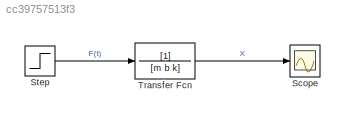
MODEL slx_cc39757513f3
KIND model
BLOCK [Scope] Scope
  Floating = off
  NumInputPorts = 1
  Ports = [1]
  ShowLegends = off
BLOCK [Step] Step
  After = 10
  SampleTime = 0
BLOCK [TransferFcn] Transfer Fcn
  Denominator = [m b k]
LINE Step:1 -> Transfer Fcn:1
LINE Transfer Fcn:1 -> Scope:1
